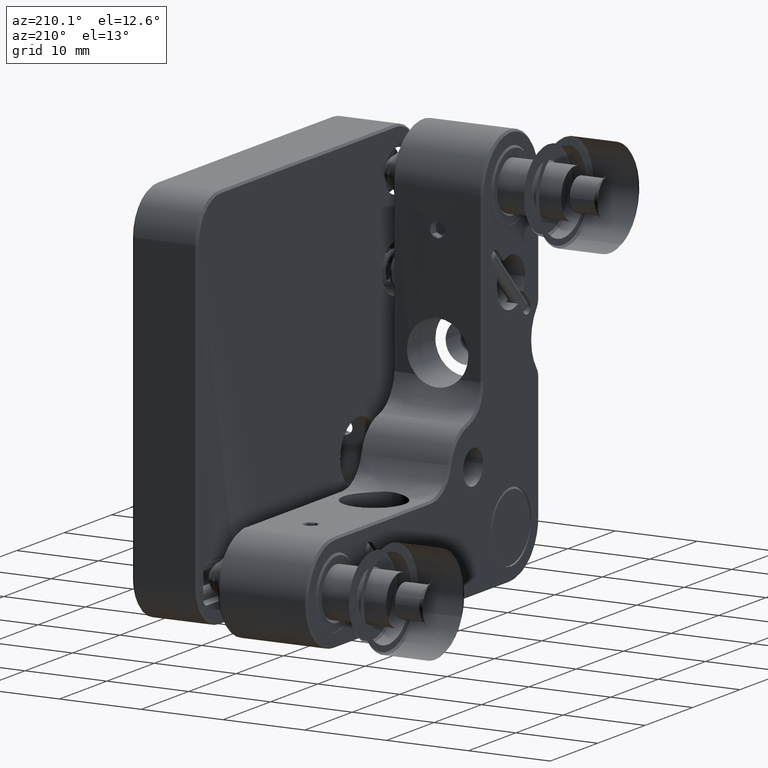
[diagram: clean part render]
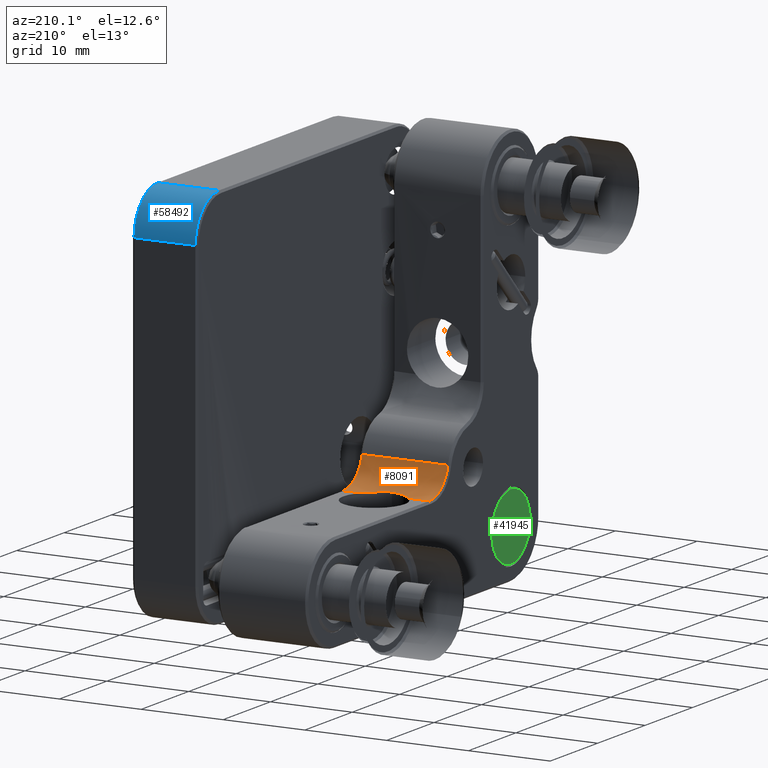
[diagram: same view with three faces highlighted in distinct colors, each labeled with its STEP entity id]
A machine part, auxiliary view with three faces highlighted in distinct colors.
Their STEP definitions:

[orange] entity #8091 — the highlighted face is a freeform B-spline surface patch.
#965 = CARTESIAN_POINT ( 'NONE',  ( 0.7900451547819834497, -2.764637060956955938, -12.36256600549579332 ) ) ;
#2514 = CARTESIAN_POINT ( 'NONE',  ( -6.301199999999998802, 2.274964387392114595, -4.499999999999998224 ) ) ;
#3188 = CARTESIAN_POINT ( 'NONE',  ( -1.252196211745082888, -2.633842134107222233, -12.39541354736195444 ) ) ;
#3811 = CARTESIAN_POINT ( 'NONE',  ( -1.866393449638213520, -2.400192248392428951, -12.44785327380657414 ) ) ;
#4434 = CARTESIAN_POINT ( 'NONE',  ( -6.689185918222169544E-07, -2.850000000008410250, -12.33854857035708008 ) ) ;
#4945 = CARTESIAN_POINT ( 'NONE',  ( -5.250000000000000000, -1.725035612607819901, -12.50000000000000000 ) ) ;
#5429 = CARTESIAN_POINT ( 'NONE',  ( -2.678000752901374959, -1.725035612607894953, -12.50000000000000000 ) ) ;
#5740 = CARTESIAN_POINT ( 'NONE',  ( 0.9041654933406884087, -2.738180669256649491, -12.36958969561494648 ) ) ;
#8091 = ADVANCED_FACE ( 'NONE', ( #49319 ), #23751, .T. ) ;
#8750 = ORIENTED_EDGE ( 'NONE', *, *, #12340, .F. ) ;
#10194 = CARTESIAN_POINT ( 'NONE',  ( 1.354091682932513363, -2.596123320228980180, -12.40399964540174693 ) ) ;
#10495 = CARTESIAN_POINT ( 'NONE',  ( 6.301199999999999690, -1.725035612607909830, -4.500000000000000000 ) ) ;
#10506 = CARTESIAN_POINT ( 'NONE',  ( 0.4486428966613146829, -2.829086744560048938, -12.34485962590929020 ) ) ;
#10893 = CARTESIAN_POINT ( 'NONE',  ( 5.249999999999952927, -1.725035612607901614, -12.50000000000000000 ) ) ;
#11433 = CARTESIAN_POINT ( 'NONE',  ( 6.301199999999999690, -1.725035612607909830, -12.50000000000000000 ) ) ;
#11530 = CARTESIAN_POINT ( 'NONE',  ( 5.250000000000000000, -5.625019784782219645, -9.388888888888867967 ) ) ;
#11768 = ORIENTED_EDGE ( 'NONE', *, *, #46077, .T. ) ;
#11898 = EDGE_CURVE ( 'NONE', #18611, #38932, #20643, .T. ) ;
#11927 = ORIENTED_EDGE ( 'NONE', *, *, #14289, .F. ) ;
#12340 = EDGE_CURVE ( 'NONE', #41112, #23991, #13933, .T. ) ;
#12681 = CARTESIAN_POINT ( 'NONE',  ( -6.301199999999998802, 2.274964387392114595, -12.50000000000000178 ) ) ;
#12683 = CARTESIAN_POINT ( 'NONE',  ( -5.250000000000000000, -1.725035612607819901, -12.50000000000000000 ) ) ;
#12721 = CARTESIAN_POINT ( 'NONE',  ( -0.1117137524380198421, -2.850017752053664921, -12.33854336777250360 ) ) ;
#13040 = CARTESIAN_POINT ( 'NONE',  ( -1.320232282239530042, -2.608957894736160465, -12.40111371598408851 ) ) ;
#13644 = B_SPLINE_CURVE_WITH_KNOTS ( 'NONE', 3,
 ( #57938, #58560, #58250, #28984, #29297, #34074, #62704, #38851, #25472, #39470, #20059, #10194, #48391, #14979, #19121, #5740, #965, #43943, #10506, #14354, #33760 ),
 .UNSPECIFIED., .F., .F.,
 ( 4, 2, 2, 1, 1, 1, 2, 2, 2, 2, 2, 4 ),
 ( 0.000000000000000000, 0.2499999999999971134, 0.3749999999999955591, 0.4374999999999947820, 0.4687499999999943934, 0.4843749999999942268, 0.4921874999999941713, 0.4999999999999940603, 0.6249999999999955591, 0.6874999999999962252, 0.7499999999999970024, 1.000000000000000000 ),
 .UNSPECIFIED. ) ;
#13933 = B_SPLINE_CURVE_WITH_KNOTS ( 'NONE', 1,
 ( #25474, #5429 ),
 .UNSPECIFIED., .F., .F.,
 ( 2, 2 ),
 ( 0.000000000000000000, 1.000000000000000000 ),
 .UNSPECIFIED. ) ;
#14289 = EDGE_CURVE ( 'NONE', #38932, #33013, #35631, .T. ) ;
#14354 = CARTESIAN_POINT ( 'NONE',  ( 0.2238276515528904165, -2.849964412100436384, -12.33855900012590823 ) ) ;
#14979 = CARTESIAN_POINT ( 'NONE',  ( 1.128953420886192660, -2.676532640789681228, -12.38531927902497110 ) ) ;
#16215 = CARTESIAN_POINT ( 'NONE',  ( 6.301199999999998802, -5.725035612607907609, -12.50000000000000178 ) ) ;
#16596 =( BOUNDED_CURVE ( )  B_SPLINE_CURVE ( 2, ( #36574, #22870, #12683 ),
 .UNSPECIFIED., .F., .T. ) 
 B_SPLINE_CURVE_WITH_KNOTS ( ( 3, 3 ),
 ( 0.000000000000000000, 1.000000000000000000 ),
 .UNSPECIFIED. ) 
 CURVE ( )  GEOMETRIC_REPRESENTATION_ITEM ( )  RATIONAL_B_SPLINE_CURVE ( ( 0.9244788766153244630, 0.7516377541656196204, 1.000000000000002220 ) ) 
 REPRESENTATION_ITEM ( '' )  );
#17157 = CARTESIAN_POINT ( 'NONE',  ( -6.301199999999999690, 2.274964387392115484, -8.500000000000000000 ) ) ;
#17164 = ORIENTED_EDGE ( 'NONE', *, *, #50567, .T. ) ;
#18611 = VERTEX_POINT ( 'NONE', #41622 ) ;
#19121 = CARTESIAN_POINT ( 'NONE',  ( 0.9607324126811974674, -2.723703727686212162, -12.37336095911243916 ) ) ;
#20059 = CARTESIAN_POINT ( 'NONE',  ( 1.363532271601282320, -2.592481525248426344, -12.40481087847367014 ) ) ;
#20643 = B_SPLINE_CURVE_WITH_KNOTS ( 'NONE', 1,
 ( #54484, #10893 ),
 .UNSPECIFIED., .F., .F.,
 ( 2, 2 ),
 ( 0.000000000000000000, 1.000000000000000000 ),
 .UNSPECIFIED. ) ;
#21045 = EDGE_CURVE ( 'NONE', #32181, #33013, #51967, .T. ) ;
#21915 = CARTESIAN_POINT ( 'NONE',  ( -6.301199999999999690, -1.725035612607884961, -4.500000000000000000 ) ) ;
#22870 = CARTESIAN_POINT ( 'NONE',  ( -5.249999999999992006, -4.915931753477766897, -12.50000000000001954 ) ) ;
#22912 = CARTESIAN_POINT ( 'NONE',  ( -0.9046100530951857177, -2.739436765340720115, -12.36937240695844231 ) ) ;
#23751 =( BOUNDED_SURFACE ( )  B_SPLINE_SURFACE ( 1, 2, ( 
 ( #54085, #59791, #10495, #30226, #35310, #54709, #11433, #16215, #26078 ),
 ( #45496, #40704, #21915, #2514, #17157, #12681, #41964, #42282, #31789 ) ),
 .UNSPECIFIED., .F., .T., .F. ) 
 B_SPLINE_SURFACE_WITH_KNOTS ( ( 2, 2 ),
 ( 3, 2, 2, 2, 3 ),
 ( 0.000000000000000000, 12.60239999999999938 ),
 ( 0.000000000000000000, 1.570796326794895004, 3.141592653589795336, 4.712388980384689674, 6.283185307179590673 ),
 .UNSPECIFIED. ) 
 GEOMETRIC_REPRESENTATION_ITEM ( )  RATIONAL_B_SPLINE_SURFACE ( (
 ( 1.000000000000000000, 0.7071067811865480168, 1.000000000000000000, 0.7071067811865480168, 1.000000000000000000, 0.7071067811865480168, 1.000000000000000000, 0.7071067811865480168, 1.000000000000000000),
 ( 1.000000000000000000, 0.7071067811865480168, 1.000000000000000000, 0.7071067811865480168, 1.000000000000000000, 0.7071067811865480168, 1.000000000000000000, 0.7071067811865480168, 1.000000000000000000) ) ) 
 REPRESENTATION_ITEM ( '' )  SURFACE ( )  );
#23991 = VERTEX_POINT ( 'NONE', #36397 ) ;
#25472 = CARTESIAN_POINT ( 'NONE',  ( 1.403846571846233404, -2.576660418789150420, -12.40830012521095682 ) ) ;
#25474 = CARTESIAN_POINT ( 'NONE',  ( -5.250000000000000000, -1.725035612607819901, -12.50000000000000000 ) ) ;
#26078 = CARTESIAN_POINT ( 'NONE',  ( 6.301199999999999690, -5.725035612607910274, -8.500000000000000000 ) ) ;
#26812 = CARTESIAN_POINT ( 'NONE',  ( 5.249999999999991118, -4.915931753477753574, -12.49999999999996447 ) ) ;
#27379 = CARTESIAN_POINT ( 'NONE',  ( -2.678000752901374959, -1.725035612607894953, -12.50000000000000000 ) ) ;
#27695 = CARTESIAN_POINT ( 'NONE',  ( -0.3923854537353786975, -2.829144752599853430, -12.34460303985619944 ) ) ;
#28003 = CARTESIAN_POINT ( 'NONE',  ( -1.072830769307966392, -2.692265083168603024, -12.38133099359976619 ) ) ;
#28984 = CARTESIAN_POINT ( 'NONE',  ( 1.958426429599362306, -2.302252811277308187, -12.45882350491253376 ) ) ;
#29297 = CARTESIAN_POINT ( 'NONE',  ( 1.842816224459125962, -2.369915677341966731, -12.44817169963740255 ) ) ;
#30226 = CARTESIAN_POINT ( 'NONE',  ( 6.301200000000018342, 2.274964387392085730, -4.499999999999998224 ) ) ;
#31789 = CARTESIAN_POINT ( 'NONE',  ( -6.301199999999999690, -5.725035612607880076, -8.500000000000000000 ) ) ;
#32181 = VERTEX_POINT ( 'NONE', #40040 ) ;
#32450 = CARTESIAN_POINT ( 'NONE',  ( -0.7905063698599559263, -2.765892369297545006, -12.36226777442123925 ) ) ;
#33013 = VERTEX_POINT ( 'NONE', #51233 ) ;
#33760 = CARTESIAN_POINT ( 'NONE',  ( -6.689185918222169544E-07, -2.850000000008410250, -12.33854857035708008 ) ) ;
#34074 = CARTESIAN_POINT ( 'NONE',  ( 1.662319565747745420, -2.462472295341727069, -12.43156071501964988 ) ) ;
#35034 = ORIENTED_EDGE ( 'NONE', *, *, #11898, .F. ) ;
#35310 = CARTESIAN_POINT ( 'NONE',  ( 6.301199999999999690, 2.274964387392090170, -8.500000000000000000 ) ) ;
#35631 =( BOUNDED_CURVE ( )  B_SPLINE_CURVE ( 2, ( #41742, #26812, #11530 ),
 .UNSPECIFIED., .F., .F. ) 
 B_SPLINE_CURVE_WITH_KNOTS ( ( 3, 3 ),
 ( 0.000000000000000000, 1.000000000000000000 ),
 .UNSPECIFIED. ) 
 CURVE ( )  GEOMETRIC_REPRESENTATION_ITEM ( )  RATIONAL_B_SPLINE_CURVE ( ( 0.9999999999999978906, 0.7516377541656263928, 0.9244788766153198001 ) ) 
 REPRESENTATION_ITEM ( '' )  );
#36342 = VERTEX_POINT ( 'NONE', #39756 ) ;
#36397 = CARTESIAN_POINT ( 'NONE',  ( -2.678000752901374959, -1.725035612607894953, -12.50000000000000000 ) ) ;
#36574 = CARTESIAN_POINT ( 'NONE',  ( -5.250000000000000000, -5.625019784782169907, -9.388888888888839546 ) ) ;
#36928 = CARTESIAN_POINT ( 'NONE',  ( -0.6164160363670511122, -2.798071677665891599, -12.35340335163666659 ) ) ;
#37023 = CARTESIAN_POINT ( 'NONE',  ( 5.375000000000000000, -1.725035612607859870, -12.62500000000000000 ) ) ;
#37555 = CARTESIAN_POINT ( 'NONE',  ( -0.4486760556509448161, -2.822616279875990841, -12.34647670145877818 ) ) ;
#38851 = CARTESIAN_POINT ( 'NONE',  ( 1.459847695955246216, -2.553944657435101018, -12.41321153951112599 ) ) ;
#38932 = VERTEX_POINT ( 'NONE', #37023 ) ;
#39470 = CARTESIAN_POINT ( 'NONE',  ( 1.379680120921140007, -2.586181660327251830, -12.40620504998142337 ) ) ;
#39756 = CARTESIAN_POINT ( 'NONE',  ( -6.689185918222169544E-07, -2.850000000008410250, -12.33854857035708008 ) ) ;
#40040 = CARTESIAN_POINT ( 'NONE',  ( -5.250000000000000000, -5.625019784782169907, -9.388888888888839546 ) ) ;
#40704 = CARTESIAN_POINT ( 'NONE',  ( -6.301200000000018342, -5.725035612607879187, -4.499999999999998224 ) ) ;
#41112 = VERTEX_POINT ( 'NONE', #4945 ) ;
#41622 = CARTESIAN_POINT ( 'NONE',  ( 2.678000752901370074, -1.725035612607899838, -12.50000000000000000 ) ) ;
#41742 = CARTESIAN_POINT ( 'NONE',  ( 5.249999999999992895, -1.725035612607929369, -12.49999999999999289 ) ) ;
#41964 = CARTESIAN_POINT ( 'NONE',  ( -6.301199999999999690, -1.725035612607884961, -12.50000000000000000 ) ) ;
#42282 = CARTESIAN_POINT ( 'NONE',  ( -6.301200000000018342, -5.725035612607879187, -12.50000000000000178 ) ) ;
#42638 = CARTESIAN_POINT ( 'NONE',  ( -0.2237740840821718646, -2.844806953547798223, -12.34008206323133727 ) ) ;
#43943 = CARTESIAN_POINT ( 'NONE',  ( 0.7308956088431066700, -2.776911597521981800, -12.35923231552184021 ) ) ;
#45265 = ORIENTED_EDGE ( 'NONE', *, *, #55672, .F. ) ;
#45496 = CARTESIAN_POINT ( 'NONE',  ( -6.301199999999999690, -5.725035612607880076, -8.500000000000000000 ) ) ;
#46077 = EDGE_CURVE ( 'NONE', #18611, #36342, #13644, .T. ) ;
#46716 = CARTESIAN_POINT ( 'NONE',  ( 5.250000000000000000, -5.625019784782219645, -9.388888888888869744 ) ) ;
#47412 = CARTESIAN_POINT ( 'NONE',  ( -1.156207425254339283, -2.666807604673586685, -12.38763289117157917 ) ) ;
#48391 = CARTESIAN_POINT ( 'NONE',  ( 1.239127759934147255, -2.640095503164250790, -12.39415767105858457 ) ) ;
#49319 = FACE_OUTER_BOUND ( 'NONE', #54968, .T. ) ;
#50567 = EDGE_CURVE ( 'NONE', #36342, #23991, #54424, .T. ) ;
#51233 = CARTESIAN_POINT ( 'NONE',  ( 5.250000000000000000, -5.625019784782219645, -9.388888888888869744 ) ) ;
#51537 = CARTESIAN_POINT ( 'NONE',  ( -1.339218630550351952, -2.601807946963169638, -12.40272729981552402 ) ) ;
#51856 = CARTESIAN_POINT ( 'NONE',  ( -1.299869610295445677, -2.616545136646131642, -12.39939191962940690 ) ) ;
#51967 =( BOUNDED_CURVE ( )  B_SPLINE_CURVE ( 1, ( #61018, #46716 ),
 .UNSPECIFIED., .F., .F. ) 
 B_SPLINE_CURVE_WITH_KNOTS ( ( 2, 2 ),
 ( 0.000000000000000000, 1.000000000000000000 ),
 .UNSPECIFIED. ) 
 CURVE ( )  GEOMETRIC_REPRESENTATION_ITEM ( )  RATIONAL_B_SPLINE_CURVE ( ( 0.9244788766153251292, 0.9244788766153251292 ) ) 
 REPRESENTATION_ITEM ( '' )  );
#52479 = CARTESIAN_POINT ( 'NONE',  ( -2.309950696477847565, -2.100511742648679459, -12.50000000000000000 ) ) ;
#54085 = CARTESIAN_POINT ( 'NONE',  ( 6.301199999999999690, -5.725035612607910274, -8.500000000000000000 ) ) ;
#54424 = B_SPLINE_CURVE_WITH_KNOTS ( 'NONE', 3,
 ( #4434, #12721, #42638, #27695, #37555, #61095, #36928, #32450, #22912, #28003, #47412, #3188, #51856, #13040, #56939, #51537, #3811, #52479, #27379 ),
 .UNSPECIFIED., .F., .F.,
 ( 4, 2, 2, 2, 2, 1, 1, 1, 2, 2, 4 ),
 ( 0.000000000000000000, 0.1249999999999995559, 0.1874999999999992784, 0.2499999999999990008, 0.3749999999999984457, 0.4374999999999983902, 0.4687499999999983347, 0.4843749999999983347, 0.4921874999999984457, 0.4999999999999985567, 1.000000000000000000 ),
 .UNSPECIFIED. ) ;
#54484 = CARTESIAN_POINT ( 'NONE',  ( 2.678000752901370074, -1.725035612607899838, -12.50000000000000000 ) ) ;
#54709 = CARTESIAN_POINT ( 'NONE',  ( 6.301200000000018342, 2.274964387392085730, -12.50000000000000178 ) ) ;
#54968 = EDGE_LOOP ( 'NONE', ( #45265, #59068, #11927, #35034, #11768, #17164, #8750 ) ) ;
#55672 = EDGE_CURVE ( 'NONE', #32181, #41112, #16596, .T. ) ;
#56939 = CARTESIAN_POINT ( 'NONE',  ( -1.333792111407252179, -2.603861041981992752, -12.40226507179708015 ) ) ;
#57938 = CARTESIAN_POINT ( 'NONE',  ( 2.678000752901370074, -1.725035612607899838, -12.50000000000000000 ) ) ;
#58250 = CARTESIAN_POINT ( 'NONE',  ( 2.291094343018020840, -2.082278126974837829, -12.48675691958760758 ) ) ;
#58560 = CARTESIAN_POINT ( 'NONE',  ( 2.493989349294392532, -1.912759800918180764, -12.50000000000000533 ) ) ;
#59068 = ORIENTED_EDGE ( 'NONE', *, *, #21045, .T. ) ;
#59791 = CARTESIAN_POINT ( 'NONE',  ( 6.301199999999998802, -5.725035612607907609, -4.499999999999998224 ) ) ;
#61018 = CARTESIAN_POINT ( 'NONE',  ( -5.250000000000000000, -5.625019784782169907, -9.388888888888839546 ) ) ;
#61095 = CARTESIAN_POINT ( 'NONE',  ( -0.5614308835444036250, -2.806943057564797339, -12.35091451691319087 ) ) ;
#62704 = CARTESIAN_POINT ( 'NONE',  ( 1.570300898641798559, -2.506520084877757792, -12.42309483007535675 ) ) ;

[blue] entity #58492 — the highlighted face is a freeform B-spline surface patch.
#521 = CARTESIAN_POINT ( 'NONE',  ( 16.24606781186519910, 23.50000000000000000, 18.50000000000000000 ) ) ;
#1504 = EDGE_CURVE ( 'NONE', #47078, #16405, #48716, .T. ) ;
#6850 = CARTESIAN_POINT ( 'NONE',  ( 7.994867811865119300, 13.50000000000000000, 18.50000000000000000 ) ) ;
#7685 = EDGE_LOOP ( 'NONE', ( #22147, #40160, #41376, #44374 ) ) ;
#9528 = CARTESIAN_POINT ( 'NONE',  ( 8.746067811865161801, 18.50000000000000000, 23.50000000000000000 ) ) ;
#11921 = CARTESIAN_POINT ( 'NONE',  ( 16.99726781186522828, 23.49999999999995737, 13.49999999999998934 ) ) ;
#12236 = CARTESIAN_POINT ( 'NONE',  ( 16.99726781186519986, 18.50000000000000000, 23.50000000000000000 ) ) ;
#13944 = CARTESIAN_POINT ( 'NONE',  ( 16.24606781186519910, 18.50000000000000000, 23.50000000000000000 ) ) ;
#14009 = EDGE_CURVE ( 'NONE', #29809, #16405, #16495, .T. ) ;
#14709 = CARTESIAN_POINT ( 'NONE',  ( 16.24606781186519910, 23.50000000000000000, 18.50000000000000000 ) ) ;
#16171 = CARTESIAN_POINT ( 'NONE',  ( 16.24606781186519910, 18.50000000000000000, 23.50000000000000000 ) ) ;
#16219 =( BOUNDED_SURFACE ( )  B_SPLINE_SURFACE ( 2, 1, ( 
 ( #6850, #26261 ),
 ( #44431, #60287 ),
 ( #16709, #36123 ),
 ( #55514, #11921 ),
 ( #17652, #51050 ),
 ( #56136, #37690 ),
 ( #26573, #12236 ),
 ( #41508, #45981 ),
 ( #37373, #61853 ) ),
 .UNSPECIFIED., .T., .F., .T. ) 
 B_SPLINE_SURFACE_WITH_KNOTS ( ( 3, 2, 2, 2, 3 ),
 ( 2, 2 ),
 ( 0.000000000000000000, 1.570796326794895004, 3.141592653589795336, 4.712388980384689674, 6.283185307179590673 ),
 ( 0.000000000000000000, 9.002399999999999736 ),
 .UNSPECIFIED. ) 
 GEOMETRIC_REPRESENTATION_ITEM ( )  RATIONAL_B_SPLINE_SURFACE ( (
 ( 1.000000000000000000, 1.000000000000000000),
 ( 0.7071067811865480168, 0.7071067811865480168),
 ( 1.000000000000000000, 1.000000000000000000),
 ( 0.7071067811865480168, 0.7071067811865480168),
 ( 1.000000000000000000, 1.000000000000000000),
 ( 0.7071067811865480168, 0.7071067811865480168),
 ( 1.000000000000000000, 1.000000000000000000),
 ( 0.7071067811865480168, 0.7071067811865480168),
 ( 1.000000000000000000, 1.000000000000000000) ) ) 
 REPRESENTATION_ITEM ( '' )  SURFACE ( )  );
#16405 = VERTEX_POINT ( 'NONE', #51297 ) ;
#16495 =( BOUNDED_CURVE ( )  B_SPLINE_CURVE ( 2, ( #33343, #47046, #13944 ),
 .UNSPECIFIED., .F., .F. ) 
 B_SPLINE_CURVE_WITH_KNOTS ( ( 3, 3 ),
 ( 0.000000000000000000, 1.000000000000000000 ),
 .UNSPECIFIED. ) 
 CURVE ( )  GEOMETRIC_REPRESENTATION_ITEM ( )  RATIONAL_B_SPLINE_CURVE ( ( 0.9999999999999978906, 0.7071067811865479058, 1.000000000000001998 ) ) 
 REPRESENTATION_ITEM ( '' )  );
#16709 = CARTESIAN_POINT ( 'NONE',  ( 7.994867811865140617, 18.50000000000000000, 13.50000000000000000 ) ) ;
#17652 = CARTESIAN_POINT ( 'NONE',  ( 7.994867811865161045, 23.50000000000000000, 18.50000000000000000 ) ) ;
#22047 =( BOUNDED_CURVE ( )  B_SPLINE_CURVE ( 2, ( #9528, #24178, #28949 ),
 .UNSPECIFIED., .F., .T. ) 
 B_SPLINE_CURVE_WITH_KNOTS ( ( 3, 3 ),
 ( 0.000000000000000000, 1.000000000000000000 ),
 .UNSPECIFIED. ) 
 CURVE ( )  GEOMETRIC_REPRESENTATION_ITEM ( )  RATIONAL_B_SPLINE_CURVE ( ( 0.9999999999999976685, 0.7071067811865483499, 1.000000000000001998 ) ) 
 REPRESENTATION_ITEM ( '' )  );
#22147 = ORIENTED_EDGE ( 'NONE', *, *, #1504, .T. ) ;
#24178 = CARTESIAN_POINT ( 'NONE',  ( 8.746067811865151143, 23.50000000000004263, 23.49999999999993605 ) ) ;
#24574 = CARTESIAN_POINT ( 'NONE',  ( 8.746067811865161801, 23.50000000000000000, 18.50000000000000000 ) ) ;
#26261 = CARTESIAN_POINT ( 'NONE',  ( 16.99726781186519986, 13.50000000000000000, 18.50000000000000000 ) ) ;
#26573 = CARTESIAN_POINT ( 'NONE',  ( 7.994867811865140617, 18.50000000000000000, 23.50000000000000000 ) ) ;
#28949 = CARTESIAN_POINT ( 'NONE',  ( 8.746067811865161801, 23.50000000000000000, 18.50000000000000000 ) ) ;
#29778 = CARTESIAN_POINT ( 'NONE',  ( 8.746067811865161801, 18.50000000000000000, 23.50000000000000000 ) ) ;
#29809 = VERTEX_POINT ( 'NONE', #521 ) ;
#33343 = CARTESIAN_POINT ( 'NONE',  ( 16.24606781186519910, 23.50000000000000000, 18.50000000000000000 ) ) ;
#34437 = EDGE_CURVE ( 'NONE', #47078, #62351, #22047, .T. ) ;
#36123 = CARTESIAN_POINT ( 'NONE',  ( 16.99726781186519986, 18.50000000000000000, 13.50000000000000000 ) ) ;
#37373 = CARTESIAN_POINT ( 'NONE',  ( 7.994867811865119300, 13.50000000000000000, 18.50000000000000000 ) ) ;
#37690 = CARTESIAN_POINT ( 'NONE',  ( 16.99726781186522828, 23.49999999999995737, 23.50000000000002842 ) ) ;
#39940 = FACE_OUTER_BOUND ( 'NONE', #7685, .T. ) ;
#40160 = ORIENTED_EDGE ( 'NONE', *, *, #14009, .F. ) ;
#41376 = ORIENTED_EDGE ( 'NONE', *, *, #51947, .F. ) ;
#41508 = CARTESIAN_POINT ( 'NONE',  ( 7.994867811865112195, 13.49999999999995914, 23.49999999999995737 ) ) ;
#44374 = ORIENTED_EDGE ( 'NONE', *, *, #34437, .F. ) ;
#44431 = CARTESIAN_POINT ( 'NONE',  ( 7.994867811865112195, 13.49999999999995914, 13.49999999999998934 ) ) ;
#45981 = CARTESIAN_POINT ( 'NONE',  ( 16.99726781186517144, 13.49999999999991829, 23.50000000000002842 ) ) ;
#47046 = CARTESIAN_POINT ( 'NONE',  ( 16.24606781186516713, 23.49999999999993605, 23.50000000000004263 ) ) ;
#47078 = VERTEX_POINT ( 'NONE', #29778 ) ;
#48716 = B_SPLINE_CURVE_WITH_KNOTS ( 'NONE', 1,
 ( #55288, #16171 ),
 .UNSPECIFIED., .F., .F.,
 ( 2, 2 ),
 ( 0.000000000000000000, 1.000000000000000000 ),
 .UNSPECIFIED. ) ;
#51050 = CARTESIAN_POINT ( 'NONE',  ( 16.99726781186525315, 23.50000000000000000, 18.50000000000000000 ) ) ;
#51297 = CARTESIAN_POINT ( 'NONE',  ( 16.24606781186519910, 18.50000000000000000, 23.50000000000000000 ) ) ;
#51947 = EDGE_CURVE ( 'NONE', #62351, #29809, #62649, .T. ) ;
#55288 = CARTESIAN_POINT ( 'NONE',  ( 8.746067811865161801, 18.50000000000000000, 23.50000000000000000 ) ) ;
#55514 = CARTESIAN_POINT ( 'NONE',  ( 7.994867811865153939, 23.49999999999995737, 13.49999999999998934 ) ) ;
#56136 = CARTESIAN_POINT ( 'NONE',  ( 7.994867811865153939, 23.49999999999995737, 23.49999999999995737 ) ) ;
#58041 = CARTESIAN_POINT ( 'NONE',  ( 8.746067811865161801, 23.50000000000000000, 18.50000000000000000 ) ) ;
#58492 = ADVANCED_FACE ( 'NONE', ( #39940 ), #16219, .T. ) ;
#60287 = CARTESIAN_POINT ( 'NONE',  ( 16.99726781186517144, 13.49999999999991829, 13.49999999999998934 ) ) ;
#61853 = CARTESIAN_POINT ( 'NONE',  ( 16.99726781186519986, 13.50000000000000000, 18.50000000000000000 ) ) ;
#62351 = VERTEX_POINT ( 'NONE', #58041 ) ;
#62649 = B_SPLINE_CURVE_WITH_KNOTS ( 'NONE', 1,
 ( #24574, #14709 ),
 .UNSPECIFIED., .F., .F.,
 ( 2, 2 ),
 ( 0.000000000000000000, 1.000000000000000000 ),
 .UNSPECIFIED. ) ;

[green] entity #41945 — the highlighted face is a freeform B-spline surface patch.
#787 = CARTESIAN_POINT ( 'NONE',  ( -5.500000000000000000, -14.45000449568600409, -17.98501743893191929 ) ) ;
#1099 = CARTESIAN_POINT ( 'NONE',  ( -5.500000000000000000, -16.22653012657138305, -21.85238884944946847 ) ) ;
#1419 =( BOUNDED_CURVE ( )  B_SPLINE_CURVE ( 2, ( #40324, #21223, #31411, #7232, #40012 ),
 .UNSPECIFIED., .F., .F. ) 
 B_SPLINE_CURVE_WITH_KNOTS ( ( 3, 2, 3 ),
 ( 0.000000000000000000, 0.5000000000000008882, 1.000000000000000000 ),
 .UNSPECIFIED. ) 
 CURVE ( )  GEOMETRIC_REPRESENTATION_ITEM ( )  RATIONAL_B_SPLINE_CURVE ( ( 1.000000000000001998, 0.7071067811865459074, 1.000000000000000000, 0.7071067811865500152, 0.9999999999999980016 ) ) 
 REPRESENTATION_ITEM ( '' )  );
#1710 = CARTESIAN_POINT ( 'NONE',  ( -5.499999999999999112, -16.39834124322775111, -21.96471776240767682 ) ) ;
#2029 = CARTESIAN_POINT ( 'NONE',  ( -5.499999999999999112, -15.07192336728482296, -20.65770009903800286 ) ) ;
#2409 = B_SPLINE_CURVE_WITH_KNOTS ( 'NONE', 3,
 ( #38977, #33888, #39290, #12978, #8204, #47040, #53595, #34512, #29427, #53913, #13296, #52105, #47349, #22849, #56562, #5242, #23163, #53279, #9694, #48839, #45631, #6811, #11571, #55470, #11883, #26219, #45321, #787, #59624, #59310, #30677, #20804, #21427, #59000, #34823, #10630, #25909, #16668, #6493, #2029, #44698, #44393, #31300, #50078, #35138, #30986, #1099, #1710, #54851, #11258, #49768, #40844, #54535, #5554, #25290, #59929 ),
 .UNSPECIFIED., .F., .F.,
 ( 4, 1, 1, 1, 2, 2, 1, 2, 2, 2, 1, 2, 2, 1, 1, 2, 2, 2, 1, 1, 1, 2, 2, 1, 2, 2, 2, 1, 2, 2, 1, 1, 2, 2, 4 ),
 ( 0.000000000000000000, 0.06250000000000309475, 0.09375000000000463518, 0.1093750000000057593, 0.1171875000000062589, 0.1250000000000067446, 0.1562500000000081324, 0.1718750000000088263, 0.1875000000000095202, 0.2500000000000116018, 0.2812500000000126565, 0.2968750000000133782, 0.3125000000000140998, 0.3437500000000150435, 0.3593750000000150990, 0.3671875000000147660, 0.3750000000000143774, 0.5000000000000076605, 0.5625000000000043299, 0.5937500000000026645, 0.6093750000000023315, 0.6171875000000024425, 0.6250000000000026645, 0.6562500000000036637, 0.6718750000000045519, 0.6875000000000054401, 0.7500000000000067724, 0.7812500000000072164, 0.7968750000000075495, 0.8125000000000078826, 0.8437500000000073275, 0.8593750000000067724, 0.8671875000000063283, 0.8750000000000057732, 1.000000000000000000 ),
 .UNSPECIFIED. ) ;
#5242 = CARTESIAN_POINT ( 'NONE',  ( -5.500000000000000000, -15.53737477469005412, -15.73505827589647232 ) ) ;
#5554 = CARTESIAN_POINT ( 'NONE',  ( -5.500000000000000888, -17.48805078293888471, -22.45521420643428101 ) ) ;
#6493 = CARTESIAN_POINT ( 'NONE',  ( -5.500000000000000000, -15.03680273940608636, -20.60084249428665615 ) ) ;
#6811 = CARTESIAN_POINT ( 'NONE',  ( -5.500000000000000888, -14.93214143126125748, -16.57492379249154268 ) ) ;
#7232 = CARTESIAN_POINT ( 'NONE',  ( -5.499999999999999112, -22.55000000000001137, -22.54999999999997229 ) ) ;
#8204 = CARTESIAN_POINT ( 'NONE',  ( -5.500000000000001776, -17.21970645073747619, -14.65660340941278328 ) ) ;
#9694 = CARTESIAN_POINT ( 'NONE',  ( -5.499999999999999112, -15.18807118719496962, -16.16791647021826250 ) ) ;
#10630 = CARTESIAN_POINT ( 'NONE',  ( -5.500000000000000888, -14.78472930582591793, -20.11802411134348034 ) ) ;
#11119 = FACE_OUTER_BOUND ( 'NONE', #38339, .T. ) ;
#11258 = CARTESIAN_POINT ( 'NONE',  ( -5.499999999999999112, -16.78928677369531641, -22.17211032288606631 ) ) ;
#11571 = CARTESIAN_POINT ( 'NONE',  ( -5.500000000000000888, -14.82788967711874584, -16.78928677369536970 ) ) ;
#11883 = CARTESIAN_POINT ( 'NONE',  ( -5.499999999999999112, -14.75993238063322543, -16.94578295360448550 ) ) ;
#12978 = CARTESIAN_POINT ( 'NONE',  ( -5.500000000000001776, -17.43217245044964514, -14.58921663429965498 ) ) ;
#13296 = CARTESIAN_POINT ( 'NONE',  ( -5.499999999999999112, -16.51689121878926514, -14.96803600225743125 ) ) ;
#16527 = CARTESIAN_POINT ( 'NONE',  ( -5.500000000000000000, -13.63879999999999981, -13.63879999999999981 ) ) ;
#16668 = CARTESIAN_POINT ( 'NONE',  ( -5.500000000000000000, -14.96803600225364050, -20.48310878122454426 ) ) ;
#16868 = B_SPLINE_SURFACE_WITH_KNOTS ( 'NONE', 1, 1, ( 
 ( #16527, #25767 ),
 ( #30530, #44556 ) ),
 .UNSPECIFIED., .F., .F., .F.,
 ( 2, 2 ),
 ( 2, 2 ),
 ( -4.861200000000000188, 4.861200000000000188 ),
 ( -4.861200000000000188, 4.861200000000000188 ),
 .UNSPECIFIED. ) ;
#19834 = VERTEX_POINT ( 'NONE', #42164 ) ;
#20804 = CARTESIAN_POINT ( 'NONE',  ( -5.500000000000000888, -14.65660168840798327, -19.78028920194386586 ) ) ;
#21223 = CARTESIAN_POINT ( 'NONE',  ( -5.500000000000000000, -22.55000000000001492, -14.44999999999995666 ) ) ;
#21427 = CARTESIAN_POINT ( 'NONE',  ( -5.499999999999999112, -14.68881473282974426, -19.87071265411724497 ) ) ;
#22849 = CARTESIAN_POINT ( 'NONE',  ( -5.500000000000000000, -16.04980289013196781, -15.26314742864494889 ) ) ;
#23163 = CARTESIAN_POINT ( 'NONE',  ( -5.500000000000000000, -15.39748653398298828, -15.89013670099742548 ) ) ;
#23518 = EDGE_CURVE ( 'NONE', #39170, #19834, #2409, .T. ) ;
#23922 = ORIENTED_EDGE ( 'NONE', *, *, #46868, .F. ) ;
#25290 = CARTESIAN_POINT ( 'NONE',  ( -5.500000000000001776, -17.98497864084742304, -22.55000000000001137 ) ) ;
#25767 = CARTESIAN_POINT ( 'NONE',  ( -5.500000000000000000, -23.36120000000000019, -13.63879999999999981 ) ) ;
#25909 = CARTESIAN_POINT ( 'NONE',  ( -5.499999999999999112, -14.86948459953089063, -20.30413150549242829 ) ) ;
#26219 = CARTESIAN_POINT ( 'NONE',  ( -5.499999999999998224, -14.74620532388512650, -16.97928998877583595 ) ) ;
#29037 = CARTESIAN_POINT ( 'NONE',  ( -5.500000000000000000, -18.50000000000000000, -14.44999999999999929 ) ) ;
#29427 = CARTESIAN_POINT ( 'NONE',  ( -5.500000000000000888, -16.88197588866655963, -14.78472930582866773 ) ) ;
#30530 = CARTESIAN_POINT ( 'NONE',  ( -5.500000000000000000, -13.63879999999999981, -23.36120000000000019 ) ) ;
#30677 = CARTESIAN_POINT ( 'NONE',  ( -5.499999999999999112, -14.58921368400571161, -19.56782009700407698 ) ) ;
#30986 = CARTESIAN_POINT ( 'NONE',  ( -5.500000000000001776, -16.16791647019733347, -21.81192881278803597 ) ) ;
#31300 = CARTESIAN_POINT ( 'NONE',  ( -5.500000000000000000, -15.73505827587254657, -21.46262522529051608 ) ) ;
#31411 = CARTESIAN_POINT ( 'NONE',  ( -5.500000000000001776, -22.55000000000000071, -18.50000000000000000 ) ) ;
#33888 = CARTESIAN_POINT ( 'NONE',  ( -5.500000000000000000, -18.24250304133546052, -14.44999999999999929 ) ) ;
#34512 = CARTESIAN_POINT ( 'NONE',  ( -5.499999999999998224, -17.04102656067636445, -14.72176439941428328 ) ) ;
#34823 = CARTESIAN_POINT ( 'NONE',  ( -5.500000000000001776, -14.72176439941497250, -19.95897343932111667 ) ) ;
#35138 = CARTESIAN_POINT ( 'NONE',  ( -5.500000000000000888, -16.05544109938744413, -21.72983785437303084 ) ) ;
#38339 = EDGE_LOOP ( 'NONE', ( #50655, #23922 ) ) ;
#38977 = CARTESIAN_POINT ( 'NONE',  ( -5.500000000000000000, -18.50000000000000000, -14.44999999999999929 ) ) ;
#39170 = VERTEX_POINT ( 'NONE', #29037 ) ;
#39290 = CARTESIAN_POINT ( 'NONE',  ( -5.500000000000000888, -17.86303237562136559, -14.48554467258714418 ) ) ;
#40012 = CARTESIAN_POINT ( 'NONE',  ( -5.500000000000000000, -18.50000000000000000, -22.55000000000000071 ) ) ;
#40324 = CARTESIAN_POINT ( 'NONE',  ( -5.500000000000000000, -18.50000000000000000, -14.44999999999999929 ) ) ;
#40844 = CARTESIAN_POINT ( 'NONE',  ( -5.499999999999999112, -16.94578295360446063, -22.24006761936848875 ) ) ;
#41945 = ADVANCED_FACE ( 'NONE', ( #11119 ), #16868, .T. ) ;
#42164 = CARTESIAN_POINT ( 'NONE',  ( -5.500000000000000000, -18.50000000000000000, -22.55000000000000071 ) ) ;
#44393 = CARTESIAN_POINT ( 'NONE',  ( -5.499999999999999112, -15.43853605683834296, -21.16609694083552640 ) ) ;
#44556 = CARTESIAN_POINT ( 'NONE',  ( -5.500000000000000000, -23.36120000000000019, -23.36120000000000019 ) ) ;
#44698 = CARTESIAN_POINT ( 'NONE',  ( -5.500000000000000000, -15.26314742868300023, -20.95019710989708628 ) ) ;
#45321 = CARTESIAN_POINT ( 'NONE',  ( -5.500000000000000888, -14.54479028968955667, -17.48803942625161767 ) ) ;
#45631 = CARTESIAN_POINT ( 'NONE',  ( -5.499999999999998224, -15.03528223759600735, -16.39834124322779729 ) ) ;
#46868 = EDGE_CURVE ( 'NONE', #39170, #19834, #1419, .T. ) ;
#47040 = CARTESIAN_POINT ( 'NONE',  ( -5.500000000000000000, -17.12928472861947071, -14.68881576894488639 ) ) ;
#47349 = CARTESIAN_POINT ( 'NONE',  ( -5.500000000000000000, -16.34229990095472118, -15.07192336729433890 ) ) ;
#48839 = CARTESIAN_POINT ( 'NONE',  ( -5.499999999999999112, -15.14761115054868412, -16.22653012657135818 ) ) ;
#49768 = CARTESIAN_POINT ( 'NONE',  ( -5.500000000000000888, -16.88294591001044509, -22.21334410610656462 ) ) ;
#50078 = CARTESIAN_POINT ( 'NONE',  ( -5.500000000000001776, -15.89013670095556741, -21.60251346598302646 ) ) ;
#50655 = ORIENTED_EDGE ( 'NONE', *, *, #23518, .T. ) ;
#52105 = CARTESIAN_POINT ( 'NONE',  ( -5.500000000000002665, -16.39915750572213682, -15.03680273940850043 ) ) ;
#53279 = CARTESIAN_POINT ( 'NONE',  ( -5.499999999999999112, -15.27016214560026519, -16.05544109942033160 ) ) ;
#53595 = CARTESIAN_POINT ( 'NONE',  ( -5.500000000000000000, -17.06914472163001761, -14.71103118931184994 ) ) ;
#53913 = CARTESIAN_POINT ( 'NONE',  ( -5.500000000000000000, -16.69586849452516120, -14.86948459953571877 ) ) ;
#54535 = CARTESIAN_POINT ( 'NONE',  ( -5.500000000000000000, -16.97928927898287910, -22.25379439510712132 ) ) ;
#54851 = CARTESIAN_POINT ( 'NONE',  ( -5.499999999999999112, -16.57492379249146452, -22.06785856874518359 ) ) ;
#55470 = CARTESIAN_POINT ( 'NONE',  ( -5.500000000000000888, -14.78665589389654222, -16.88294591001048062 ) ) ;
#56562 = CARTESIAN_POINT ( 'NONE',  ( -5.499999999999998224, -15.83390305920332253, -15.43853605679049323 ) ) ;
#59000 = CARTESIAN_POINT ( 'NONE',  ( -5.500000000000001776, -14.71103064491237689, -19.93085390319775030 ) ) ;
#59310 = CARTESIAN_POINT ( 'NONE',  ( -5.500000000000000888, -14.48554073886188931, -19.13695768765026628 ) ) ;
#59624 = CARTESIAN_POINT ( 'NONE',  ( -5.499999999999999112, -14.44999775215700133, -18.75749128053403325 ) ) ;
#59929 = CARTESIAN_POINT ( 'NONE',  ( -5.500000000000000000, -18.50000000000000000, -22.55000000000000071 ) ) ;